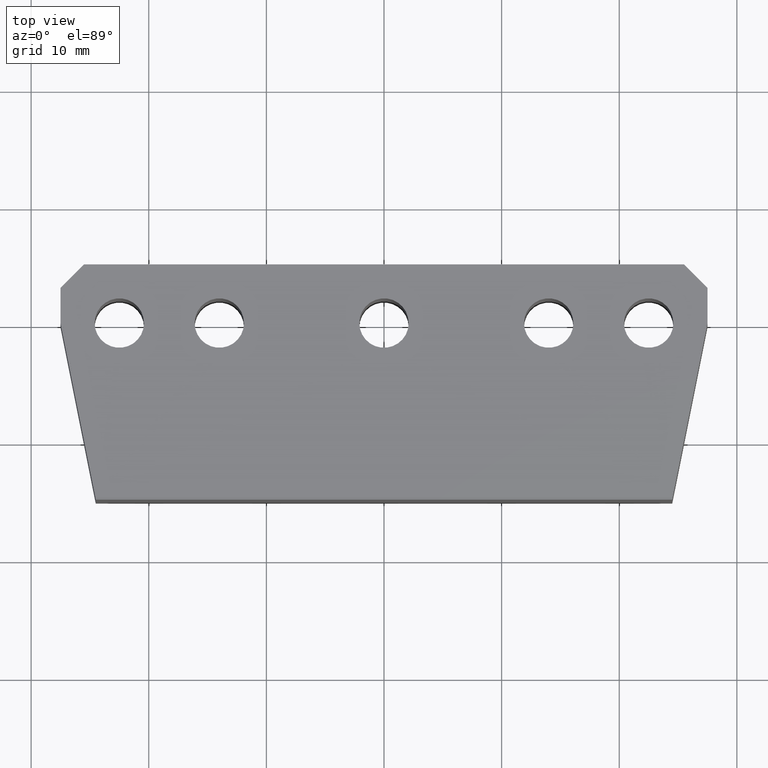
[diagram: clean part render]
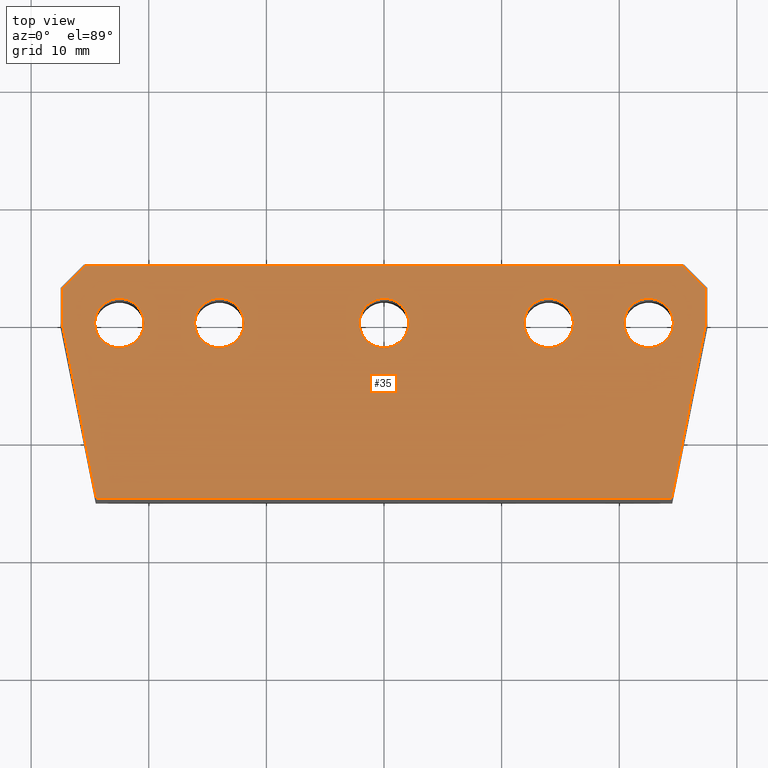
[diagram: same view with one face highlighted and labeled with its STEP entity id]
A machine part, top view. The second image highlights one B-rep face of the part: STEP entity #35.
In plain terms, the highlighted planar face has unit normal (0, 0, 1).
Its self-contained STEP definition (entity closure, byte-faithful):
#35 = ADVANCED_FACE ( 'NONE', ( #2193, #2191, #2189, #2187, #2194, #2192 ), #2190, .T. ) ;
#106 = EDGE_CURVE ( 'NONE', #2765, #2764, #1873, .T. ) ;
#118 = EDGE_CURVE ( 'NONE', #2777, #2793, #1825, .T. ) ;
#122 = EDGE_CURVE ( 'NONE', #2703, #2706, #602, .T. ) ;
#124 = EDGE_CURVE ( 'NONE', #2774, #2778, #1808, .T. ) ;
#125 = EDGE_CURVE ( 'NONE', #2793, #2792, #1805, .T. ) ;
#133 = EDGE_CURVE ( 'NONE', #2773, #2774, #1793, .T. ) ;
#137 = EDGE_CURVE ( 'NONE', #2776, #2775, #677, .T. ) ;
#139 = EDGE_CURVE ( 'NONE', #2778, #2777, #1768, .T. ) ;
#147 = EDGE_CURVE ( 'NONE', #2764, #2773, #1739, .T. ) ;
#152 = EDGE_CURVE ( 'NONE', #2792, #2765, #1728, .T. ) ;
#166 = EDGE_CURVE ( 'NONE', #2757, #2758, #768, .T. ) ;
#173 = EDGE_CURVE ( 'NONE', #2749, #2750, #730, .T. ) ;
#174 = EDGE_CURVE ( 'NONE', #2775, #2776, #772, .T. ) ;
#176 = EDGE_CURVE ( 'NONE', #2753, #2754, #742, .T. ) ;
#271 = AXIS2_PLACEMENT_3D ( 'NONE', #2186, #2185, #2184 ) ;
#400 = AXIS2_PLACEMENT_3D ( 'NONE', #1326, #1325, #1323 ) ;
#497 = CIRCLE ( 'NONE', #757, 2.100000000000000500 ) ;
#508 = AXIS2_PLACEMENT_3D ( 'NONE', #1291, #1289, #1288 ) ;
#544 = AXIS2_PLACEMENT_3D ( 'NONE', #1812, #1811, #1810 ) ;
#548 = AXIS2_PLACEMENT_3D ( 'NONE', #1652, #1651, #1650 ) ;
#552 = VECTOR ( 'NONE', #1737, 1000.000000000000000 ) ;
#557 = VECTOR ( 'NONE', #1779, 1000.000000000000000 ) ;
#559 = VECTOR ( 'NONE', #1762, 1000.000000000000000 ) ;
#602 = CIRCLE ( 'NONE', #544, 2.100000000000001000 ) ;
#634 = AXIS2_PLACEMENT_3D ( 'NONE', #1767, #1766, #1765 ) ;
#635 = VECTOR ( 'NONE', #1803, 1000.000000000000000 ) ;
#644 = VECTOR ( 'NONE', #1858, 1000.000000000000000 ) ;
#677 = CIRCLE ( 'NONE', #634, 2.100000000000001000 ) ;
#679 = CIRCLE ( 'NONE', #400, 2.100000000000001000 ) ;
#685 = VECTOR ( 'NONE', #1823, 1000.000000000000200 ) ;
#706 = VECTOR ( 'NONE', #1722, 999.9999999999998900 ) ;
#716 = VECTOR ( 'NONE', #1806, 1000.000000000000100 ) ;
#730 = CIRCLE ( 'NONE', #756, 2.099999999999999600 ) ;
#735 = CIRCLE ( 'NONE', #508, 2.099999999999999600 ) ;
#742 = CIRCLE ( 'NONE', #548, 2.100000000000000500 ) ;
#755 = AXIS2_PLACEMENT_3D ( 'NONE', #1659, #1658, #1657 ) ;
#756 = AXIS2_PLACEMENT_3D ( 'NONE', #1662, #1661, #1660 ) ;
#757 = AXIS2_PLACEMENT_3D ( 'NONE', #1261, #1259, #1257 ) ;
#764 = AXIS2_PLACEMENT_3D ( 'NONE', #1252, #1250, #1248 ) ;
#766 = CIRCLE ( 'NONE', #764, 2.099999999999999600 ) ;
#768 = CIRCLE ( 'NONE', #769, 2.099999999999999600 ) ;
#769 = AXIS2_PLACEMENT_3D ( 'NONE', #1681, #1680, #1679 ) ;
#772 = CIRCLE ( 'NONE', #755, 2.100000000000001000 ) ;
#862 = EDGE_LOOP ( 'NONE', ( #2943, #3168 ) ) ;
#886 = EDGE_LOOP ( 'NONE', ( #3001, #3005 ) ) ;
#894 = EDGE_LOOP ( 'NONE', ( #3169, #3170, #3171, #2938, #2974, #2976, #2977, #2979 ) ) ;
#895 = EDGE_LOOP ( 'NONE', ( #2940, #2941 ) ) ;
#896 = EDGE_LOOP ( 'NONE', ( #3007, #3046 ) ) ;
#901 = EDGE_LOOP ( 'NONE', ( #2944, #3006 ) ) ;
#1248 = DIRECTION ( 'NONE',  ( 1.000000000000000000, 0.0000000000000000000, 0.0000000000000000000 ) ) ;
#1250 = DIRECTION ( 'NONE',  ( 0.0000000000000000000, 0.0000000000000000000, 1.000000000000000000 ) ) ;
#1252 = CARTESIAN_POINT ( 'NONE',  ( -14.00000000000000000, -1.734723475976807100E-015, 0.0000000000000000000 ) ) ;
#1257 = DIRECTION ( 'NONE',  ( 1.000000000000000000, 0.0000000000000000000, 0.0000000000000000000 ) ) ;
#1259 = DIRECTION ( 'NONE',  ( 0.0000000000000000000, 0.0000000000000000000, 1.000000000000000000 ) ) ;
#1261 = CARTESIAN_POINT ( 'NONE',  ( 0.0000000000000000000, 0.0000000000000000000, 0.0000000000000000000 ) ) ;
#1270 = EDGE_CURVE ( 'NONE', #2706, #2703, #679, .T. ) ;
#1280 = EDGE_CURVE ( 'NONE', #2758, #2757, #735, .T. ) ;
#1287 = EDGE_CURVE ( 'NONE', #2754, #2753, #497, .T. ) ;
#1288 = DIRECTION ( 'NONE',  ( 1.000000000000000000, 0.0000000000000000000, 0.0000000000000000000 ) ) ;
#1289 = DIRECTION ( 'NONE',  ( 0.0000000000000000000, 0.0000000000000000000, 1.000000000000000000 ) ) ;
#1290 = EDGE_CURVE ( 'NONE', #2750, #2749, #766, .T. ) ;
#1291 = CARTESIAN_POINT ( 'NONE',  ( 14.00000000000000000, 0.0000000000000000000, 0.0000000000000000000 ) ) ;
#1323 = DIRECTION ( 'NONE',  ( 1.000000000000000000, 0.0000000000000000000, 0.0000000000000000000 ) ) ;
#1325 = DIRECTION ( 'NONE',  ( 0.0000000000000000000, 0.0000000000000000000, 1.000000000000000000 ) ) ;
#1326 = CARTESIAN_POINT ( 'NONE',  ( 22.50000000000000000, 0.0000000000000000000, 0.0000000000000000000 ) ) ;
#1650 = DIRECTION ( 'NONE',  ( 1.000000000000000000, 0.0000000000000000000, 0.0000000000000000000 ) ) ;
#1651 = DIRECTION ( 'NONE',  ( 0.0000000000000000000, 0.0000000000000000000, 1.000000000000000000 ) ) ;
#1652 = CARTESIAN_POINT ( 'NONE',  ( 0.0000000000000000000, 0.0000000000000000000, 0.0000000000000000000 ) ) ;
#1657 = DIRECTION ( 'NONE',  ( 1.000000000000000000, 0.0000000000000000000, 0.0000000000000000000 ) ) ;
#1658 = DIRECTION ( 'NONE',  ( 0.0000000000000000000, 0.0000000000000000000, 1.000000000000000000 ) ) ;
#1659 = CARTESIAN_POINT ( 'NONE',  ( -22.50000000000000000, -2.818925648462311500E-015, 0.0000000000000000000 ) ) ;
#1660 = DIRECTION ( 'NONE',  ( 1.000000000000000000, 0.0000000000000000000, 0.0000000000000000000 ) ) ;
#1661 = DIRECTION ( 'NONE',  ( 0.0000000000000000000, 0.0000000000000000000, 1.000000000000000000 ) ) ;
#1662 = CARTESIAN_POINT ( 'NONE',  ( -14.00000000000000000, -1.734723475976807100E-015, 0.0000000000000000000 ) ) ;
#1679 = DIRECTION ( 'NONE',  ( 1.000000000000000000, 0.0000000000000000000, 0.0000000000000000000 ) ) ;
#1680 = DIRECTION ( 'NONE',  ( 0.0000000000000000000, 0.0000000000000000000, 1.000000000000000000 ) ) ;
#1681 = CARTESIAN_POINT ( 'NONE',  ( 14.00000000000000000, 0.0000000000000000000, 0.0000000000000000000 ) ) ;
#1722 = DIRECTION ( 'NONE',  ( -0.7071067811865486800, 0.7071067811865464600, -0.0000000000000000000 ) ) ;
#1723 = CARTESIAN_POINT ( 'NONE',  ( 36.25000000000000700, -5.999999999999970700, 0.0000000000000000000 ) ) ;
#1728 = LINE ( 'NONE', #1723, #706 ) ;
#1737 = DIRECTION ( 'NONE',  ( -0.7071067811865466800, -0.7071067811865483500, 0.0000000000000000000 ) ) ;
#1738 = CARTESIAN_POINT ( 'NONE',  ( -8.900000000000057200, 21.34999999999998000, 0.0000000000000000000 ) ) ;
#1739 = LINE ( 'NONE', #1738, #552 ) ;
#1762 = DIRECTION ( 'NONE',  ( 1.000000000000000000, 1.418780067679338100E-016, -0.0000000000000000000 ) ) ;
#1763 = CARTESIAN_POINT ( 'NONE',  ( 1.824663467195342400E-015, -14.90000000000000000, 0.0000000000000000000 ) ) ;
#1765 = DIRECTION ( 'NONE',  ( 1.000000000000000000, 0.0000000000000000000, 0.0000000000000000000 ) ) ;
#1766 = DIRECTION ( 'NONE',  ( 0.0000000000000000000, 0.0000000000000000000, 1.000000000000000000 ) ) ;
#1767 = CARTESIAN_POINT ( 'NONE',  ( -22.50000000000000000, -2.818925648462311500E-015, 0.0000000000000000000 ) ) ;
#1768 = LINE ( 'NONE', #1763, #559 ) ;
#1779 = DIRECTION ( 'NONE',  ( -0.0000000000000000000, -1.000000000000000000, -0.0000000000000000000 ) ) ;
#1780 = CARTESIAN_POINT ( 'NONE',  ( -27.35000000000000100, -3.349298377704202300E-015, 0.0000000000000000000 ) ) ;
#1793 = LINE ( 'NONE', #1780, #557 ) ;
#1803 = DIRECTION ( 'NONE',  ( 0.0000000000000000000, 1.000000000000000000, 0.0000000000000000000 ) ) ;
#1804 = CARTESIAN_POINT ( 'NONE',  ( 27.35000000000000100, 3.349298377704202300E-015, 0.0000000000000000000 ) ) ;
#1805 = LINE ( 'NONE', #1804, #635 ) ;
#1806 = DIRECTION ( 'NONE',  ( 0.1908089953765455000, -0.9816271834476638600, -0.0000000000000000000 ) ) ;
#1807 = CARTESIAN_POINT ( 'NONE',  ( -24.45373339384798700, -14.90000000000000400, 0.0000000000000000000 ) ) ;
#1808 = LINE ( 'NONE', #1807, #716 ) ;
#1810 = DIRECTION ( 'NONE',  ( 1.000000000000000000, 0.0000000000000000000, 0.0000000000000000000 ) ) ;
#1811 = DIRECTION ( 'NONE',  ( 0.0000000000000000000, 0.0000000000000000000, 1.000000000000000000 ) ) ;
#1812 = CARTESIAN_POINT ( 'NONE',  ( 22.50000000000000000, 0.0000000000000000000, 0.0000000000000000000 ) ) ;
#1823 = DIRECTION ( 'NONE',  ( 0.1908089953765449700, 0.9816271834476638600, 0.0000000000000000000 ) ) ;
#1824 = CARTESIAN_POINT ( 'NONE',  ( 24.45373339384799400, -14.89999999999999900, 0.0000000000000000000 ) ) ;
#1825 = LINE ( 'NONE', #1824, #685 ) ;
#1858 = DIRECTION ( 'NONE',  ( -1.000000000000000000, -1.268536362688707000E-016, 0.0000000000000000000 ) ) ;
#1860 = CARTESIAN_POINT ( 'NONE',  ( 27.35000000000000100, 4.900000000000004800, 0.0000000000000000000 ) ) ;
#1873 = LINE ( 'NONE', #1860, #644 ) ;
#2184 = DIRECTION ( 'NONE',  ( 1.000000000000000000, 0.0000000000000000000, -0.0000000000000000000 ) ) ;
#2185 = DIRECTION ( 'NONE',  ( 0.0000000000000000000, 0.0000000000000000000, 1.000000000000000000 ) ) ;
#2186 = CARTESIAN_POINT ( 'NONE',  ( 27.35000000000000100, -14.89999999999999900, 0.0000000000000000000 ) ) ;
#2187 = FACE_BOUND ( 'NONE', #895, .T. ) ;
#2189 = FACE_BOUND ( 'NONE', #896, .T. ) ;
#2190 = PLANE ( 'NONE',  #271 ) ;
#2191 = FACE_BOUND ( 'NONE', #886, .T. ) ;
#2192 = FACE_OUTER_BOUND ( 'NONE', #894, .T. ) ;
#2193 = FACE_BOUND ( 'NONE', #901, .T. ) ;
#2194 = FACE_BOUND ( 'NONE', #862, .T. ) ;
#2512 = CARTESIAN_POINT ( 'NONE',  ( 20.39999999999999900, 2.571758278209442400E-016, 0.0000000000000000000 ) ) ;
#2516 = CARTESIAN_POINT ( 'NONE',  ( 24.60000000000000100, 0.0000000000000000000, 0.0000000000000000000 ) ) ;
#2611 = CARTESIAN_POINT ( 'NONE',  ( 27.35000000000000100, 3.349298377704202300E-015, 0.0000000000000000000 ) ) ;
#2612 = CARTESIAN_POINT ( 'NONE',  ( 27.35000000000000500, 2.900000000000003500, 0.0000000000000000000 ) ) ;
#2626 = CARTESIAN_POINT ( 'NONE',  ( -24.45373339384798700, -14.90000000000000400, 0.0000000000000000000 ) ) ;
#2627 = CARTESIAN_POINT ( 'NONE',  ( 24.45373339384799400, -14.89999999999999900, 0.0000000000000000000 ) ) ;
#2628 = CARTESIAN_POINT ( 'NONE',  ( -24.60000000000000100, -2.561749820641367500E-015, 0.0000000000000000000 ) ) ;
#2629 = CARTESIAN_POINT ( 'NONE',  ( -20.39999999999999900, -2.818925648462311500E-015, 0.0000000000000000000 ) ) ;
#2631 = CARTESIAN_POINT ( 'NONE',  ( -27.35000000000000100, -3.349298377704202300E-015, 0.0000000000000000000 ) ) ;
#2632 = CARTESIAN_POINT ( 'NONE',  ( -27.35000000000000100, 2.899999999999991500, 0.0000000000000000000 ) ) ;
#2641 = CARTESIAN_POINT ( 'NONE',  ( 25.34999999999999800, 4.900000000000004800, 0.0000000000000000000 ) ) ;
#2642 = CARTESIAN_POINT ( 'NONE',  ( -25.35000000000000500, 4.899999999999996800, 0.0000000000000000000 ) ) ;
#2650 = CARTESIAN_POINT ( 'NONE',  ( 11.90000000000000000, 2.571758278209440000E-016, 0.0000000000000000000 ) ) ;
#2651 = CARTESIAN_POINT ( 'NONE',  ( 16.10000000000000100, 0.0000000000000000000, 0.0000000000000000000 ) ) ;
#2654 = CARTESIAN_POINT ( 'NONE',  ( -2.100000000000000500, 2.571758278209442900E-016, 0.0000000000000000000 ) ) ;
#2655 = CARTESIAN_POINT ( 'NONE',  ( 2.100000000000000500, 0.0000000000000000000, 0.0000000000000000000 ) ) ;
#2658 = CARTESIAN_POINT ( 'NONE',  ( -16.10000000000000100, -1.477547648155863000E-015, 0.0000000000000000000 ) ) ;
#2659 = CARTESIAN_POINT ( 'NONE',  ( -11.90000000000000000, -1.734723475976807100E-015, 0.0000000000000000000 ) ) ;
#2703 = VERTEX_POINT ( 'NONE', #2516 ) ;
#2706 = VERTEX_POINT ( 'NONE', #2512 ) ;
#2749 = VERTEX_POINT ( 'NONE', #2659 ) ;
#2750 = VERTEX_POINT ( 'NONE', #2658 ) ;
#2753 = VERTEX_POINT ( 'NONE', #2655 ) ;
#2754 = VERTEX_POINT ( 'NONE', #2654 ) ;
#2757 = VERTEX_POINT ( 'NONE', #2651 ) ;
#2758 = VERTEX_POINT ( 'NONE', #2650 ) ;
#2764 = VERTEX_POINT ( 'NONE', #2642 ) ;
#2765 = VERTEX_POINT ( 'NONE', #2641 ) ;
#2773 = VERTEX_POINT ( 'NONE', #2632 ) ;
#2774 = VERTEX_POINT ( 'NONE', #2631 ) ;
#2775 = VERTEX_POINT ( 'NONE', #2629 ) ;
#2776 = VERTEX_POINT ( 'NONE', #2628 ) ;
#2777 = VERTEX_POINT ( 'NONE', #2627 ) ;
#2778 = VERTEX_POINT ( 'NONE', #2626 ) ;
#2792 = VERTEX_POINT ( 'NONE', #2612 ) ;
#2793 = VERTEX_POINT ( 'NONE', #2611 ) ;
#2938 = ORIENTED_EDGE ( 'NONE', *, *, #124, .T. ) ;
#2940 = ORIENTED_EDGE ( 'NONE', *, *, #173, .F. ) ;
#2941 = ORIENTED_EDGE ( 'NONE', *, *, #1290, .F. ) ;
#2943 = ORIENTED_EDGE ( 'NONE', *, *, #174, .F. ) ;
#2944 = ORIENTED_EDGE ( 'NONE', *, *, #122, .F. ) ;
#2974 = ORIENTED_EDGE ( 'NONE', *, *, #139, .T. ) ;
#2976 = ORIENTED_EDGE ( 'NONE', *, *, #118, .T. ) ;
#2977 = ORIENTED_EDGE ( 'NONE', *, *, #125, .T. ) ;
#2979 = ORIENTED_EDGE ( 'NONE', *, *, #152, .T. ) ;
#3001 = ORIENTED_EDGE ( 'NONE', *, *, #166, .F. ) ;
#3005 = ORIENTED_EDGE ( 'NONE', *, *, #1280, .F. ) ;
#3006 = ORIENTED_EDGE ( 'NONE', *, *, #1270, .F. ) ;
#3007 = ORIENTED_EDGE ( 'NONE', *, *, #176, .F. ) ;
#3046 = ORIENTED_EDGE ( 'NONE', *, *, #1287, .F. ) ;
#3168 = ORIENTED_EDGE ( 'NONE', *, *, #137, .F. ) ;
#3169 = ORIENTED_EDGE ( 'NONE', *, *, #106, .T. ) ;
#3170 = ORIENTED_EDGE ( 'NONE', *, *, #147, .T. ) ;
#3171 = ORIENTED_EDGE ( 'NONE', *, *, #133, .T. ) ;